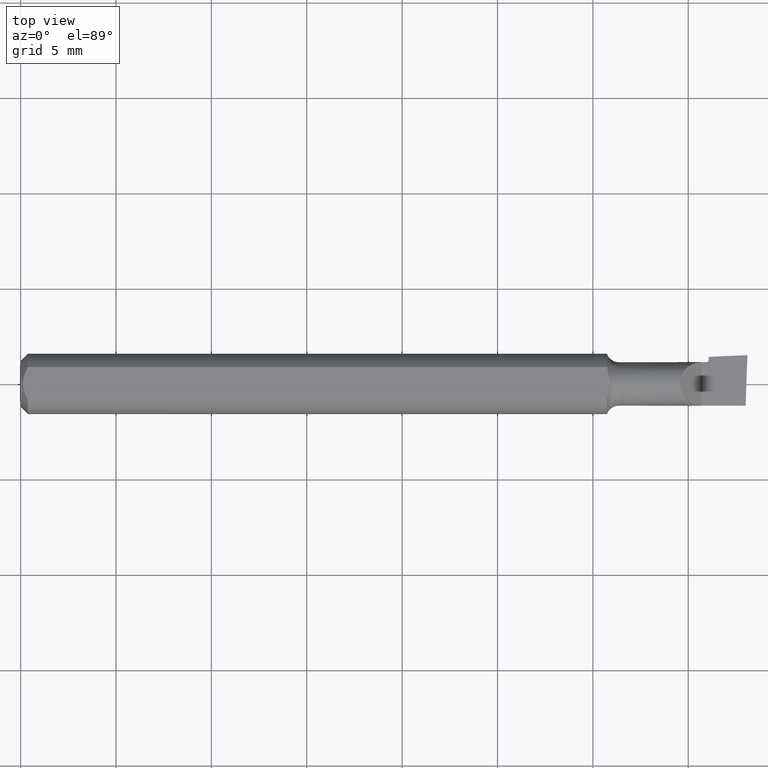
[diagram: clean part render]
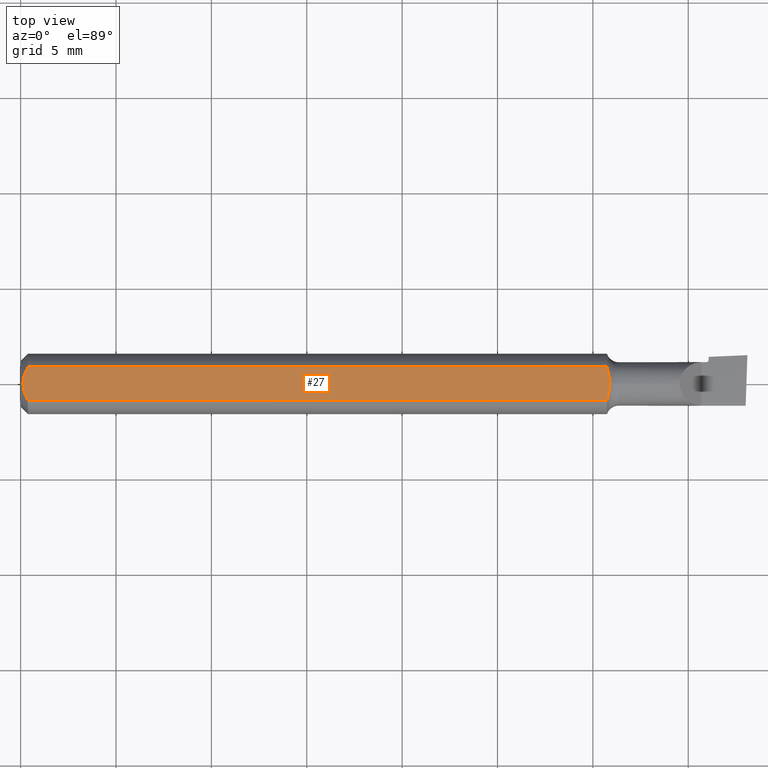
[diagram: same view with one face highlighted and labeled with its STEP entity id]
A machine part, top view. The second image highlights one B-rep face of the part: STEP entity #27.
In plain terms, the highlighted planar face has unit normal (-0, 0, -1).
Its self-contained STEP definition (entity closure, byte-faithful):
#2 = EDGE_CURVE ( 'NONE', #540, #177, #97, .T. ) ;
#4 = DIRECTION ( 'NONE',  ( -1.000000000000000000, 0.000000000000000000, 0.000000000000000000 ) ) ;
#21 = CARTESIAN_POINT ( 'NONE',  ( 1.216294704182079744, 0.005727781574962463422, 0.05235000000000000764 ) ) ;
#22 = VERTEX_POINT ( 'NONE', #380 ) ;
#27 = ADVANCED_FACE ( 'NONE', ( #394 ), #528, .F. ) ;
#43 = CARTESIAN_POINT ( 'NONE',  ( 0.01500000000000134386, -0.03386738844375219992, 0.05235000000000000764 ) ) ;
#51 = CARTESIAN_POINT ( 'NONE',  ( 0.01215148319993578432, 0.02862325741844273796, 0.05235000000000001458 ) ) ;
#53 = CARTESIAN_POINT ( 'NONE',  ( 0.01500000000000134386, -0.03386738844375219992, 0.05235000000000000764 ) ) ;
#61 = EDGE_CURVE ( 'NONE', #367, #444, #399, .T. ) ;
#65 = DIRECTION ( 'NONE',  ( 1.000000000000000000, 0.000000000000000000, 0.000000000000000000 ) ) ;
#74 = B_SPLINE_CURVE_WITH_KNOTS ( 'NONE', 3,
 ( #535, #162, #490, #289, #108, #53 ),
 .UNSPECIFIED., .F., .F.,
 ( 4, 2, 4 ),
 ( 0.003138065481210369073, 0.003587221268395912946, 0.004036377055581456819 ),
 .UNSPECIFIED. ) ;
#75 = CARTESIAN_POINT ( 'NONE',  ( 1.210199212197912599, 0.03386738844375219298, 0.05235000000000000764 ) ) ;
#84 = EDGE_CURVE ( 'NONE', #177, #444, #74, .T. ) ;
#97 = B_SPLINE_CURVE_WITH_KNOTS ( 'NONE', 3,
 ( #479, #51, #281, #476, #435, #323 ),
 .UNSPECIFIED., .F., .F.,
 ( 4, 2, 4 ),
 ( 0.002239757098154139970, 0.002688911289682254738, 0.003138065481210369073 ),
 .UNSPECIFIED. ) ;
#104 = B_SPLINE_CURVE_WITH_KNOTS ( 'NONE', 3,
 ( #121, #417, #266, #169, #176, #604 ),
 .UNSPECIFIED., .F., .F.,
 ( 4, 2, 4 ),
 ( 7.997048211592323728E-18, 0.0004371228731191618977, 0.0008742457462383155554 ),
 .UNSPECIFIED. ) ;
#108 = CARTESIAN_POINT ( 'NONE',  ( 0.01215371382284740828, -0.02862736400430402478, 0.05235000000000000764 ) ) ;
#109 = EDGE_CURVE ( 'NONE', #540, #406, #256, .T. ) ;
#113 = AXIS2_PLACEMENT_3D ( 'NONE', #157, #242, #4 ) ;
#121 = CARTESIAN_POINT ( 'NONE',  ( 1.216294704182081743, 5.980258425352743234E-45, 0.05235000000000000764 ) ) ;
#131 = ORIENTED_EDGE ( 'NONE', *, *, #84, .T. ) ;
#156 = B_SPLINE_CURVE_WITH_KNOTS ( 'NONE', 3,
 ( #75, #496, #165, #311, #21, #369 ),
 .UNSPECIFIED., .F., .F.,
 ( 4, 2, 4 ),
 ( 0.008461957719256174570, 0.008892358141365519497, 0.009322758563474862689 ),
 .UNSPECIFIED. ) ;
#157 = CARTESIAN_POINT ( 'NONE',  ( 0.000000000000000000, 0.04793338999999999933, 0.05235000000000000764 ) ) ;
#162 = CARTESIAN_POINT ( 'NONE',  ( 0.005000000000001387016, -0.005922428141025059233, 0.05235000000000002152 ) ) ;
#165 = CARTESIAN_POINT ( 'NONE',  ( 1.212665865278044652, 0.02264566276758899627, 0.05235000000000001458 ) ) ;
#169 = CARTESIAN_POINT ( 'NONE',  ( 1.212662726067923025, -0.02265753296402302913, 0.05235000000000000764 ) ) ;
#176 = CARTESIAN_POINT ( 'NONE',  ( 1.211183353785425298, -0.02823046378080374536, 0.05235000000000000070 ) ) ;
#177 = VERTEX_POINT ( 'NONE', #411 ) ;
#216 = EDGE_CURVE ( 'NONE', #22, #367, #104, .T. ) ;
#242 = DIRECTION ( 'NONE',  ( -0.000000000000000000, 0.000000000000000000, -1.000000000000000000 ) ) ;
#250 = EDGE_CURVE ( 'NONE', #406, #22, #156, .T. ) ;
#256 = LINE ( 'NONE', #294, #298 ) ;
#266 = CARTESIAN_POINT ( 'NONE',  ( 1.215248991601179496, -0.01145844255424206121, 0.05235000000000001458 ) ) ;
#281 = CARTESIAN_POINT ( 'NONE',  ( 0.009665130484206837028, 0.02321408954762991736, 0.05235000000000001458 ) ) ;
#289 = CARTESIAN_POINT ( 'NONE',  ( 0.009663423781324993397, -0.02320891702790696398, 0.05234999999999998682 ) ) ;
#294 = CARTESIAN_POINT ( 'NONE',  ( 1.500000000000000222, 0.03386738844375219298, 0.05235000000000000764 ) ) ;
#298 = VECTOR ( 'NONE', #65, 39.37007874015748143 ) ;
#311 = CARTESIAN_POINT ( 'NONE',  ( 1.215252698412093046, 0.01144066343224819926, 0.05234999999999998682 ) ) ;
#317 = ORIENTED_EDGE ( 'NONE', *, *, #216, .F. ) ;
#323 = CARTESIAN_POINT ( 'NONE',  ( 0.005000000000001387016, 6.414153026140964483E-18, 0.05235000000000000764 ) ) ;
#351 = CARTESIAN_POINT ( 'NONE',  ( 1.500000000000000222, -0.03386738844375219298, 0.05235000000000000764 ) ) ;
#367 = VERTEX_POINT ( 'NONE', #522 ) ;
#369 = CARTESIAN_POINT ( 'NONE',  ( 1.216294704182081743, 5.980258425352743234E-45, 0.05235000000000000764 ) ) ;
#380 = CARTESIAN_POINT ( 'NONE',  ( 1.216294704182081743, 5.980258425352743234E-45, 0.05235000000000000764 ) ) ;
#394 = FACE_OUTER_BOUND ( 'NONE', #617, .T. ) ;
#399 = LINE ( 'NONE', #351, #487 ) ;
#406 = VERTEX_POINT ( 'NONE', #421 ) ;
#411 = CARTESIAN_POINT ( 'NONE',  ( 0.005000000000001387016, 6.414153026140964483E-18, 0.05235000000000000764 ) ) ;
#417 = CARTESIAN_POINT ( 'NONE',  ( 1.216294704182079967, -0.005817244152261689429, 0.05235000000000001458 ) ) ;
#421 = CARTESIAN_POINT ( 'NONE',  ( 1.210199212197912599, 0.03386738844375219298, 0.05235000000000000764 ) ) ;
#432 = ORIENTED_EDGE ( 'NONE', *, *, #109, .F. ) ;
#435 = CARTESIAN_POINT ( 'NONE',  ( 0.005000000000001388750, 0.005922407101183794174, 0.05235000000000000070 ) ) ;
#444 = VERTEX_POINT ( 'NONE', #43 ) ;
#476 = CARTESIAN_POINT ( 'NONE',  ( 0.006070804952378321996, 0.01191432965610325807, 0.05235000000000000764 ) ) ;
#479 = CARTESIAN_POINT ( 'NONE',  ( 0.01500000000000134212, 0.03386738844375219992, 0.05235000000000000764 ) ) ;
#482 = CARTESIAN_POINT ( 'NONE',  ( 0.01500000000000134212, 0.03386738844375219992, 0.05235000000000000764 ) ) ;
#487 = VECTOR ( 'NONE', #587, 39.37007874015748143 ) ;
#490 = CARTESIAN_POINT ( 'NONE',  ( 0.006072086686448084983, -0.01191816614558191892, 0.05235000000000001458 ) ) ;
#496 = CARTESIAN_POINT ( 'NONE',  ( 1.211185151321282572, 0.02822016793086243661, 0.05235000000000002152 ) ) ;
#504 = ORIENTED_EDGE ( 'NONE', *, *, #61, .F. ) ;
#522 = CARTESIAN_POINT ( 'NONE',  ( 1.210199212197856422, -0.03386738844407404664, 0.05235000000000000764 ) ) ;
#528 = PLANE ( 'NONE',  #113 ) ;
#535 = CARTESIAN_POINT ( 'NONE',  ( 0.005000000000001387016, 6.414153026140964483E-18, 0.05235000000000000764 ) ) ;
#540 = VERTEX_POINT ( 'NONE', #482 ) ;
#587 = DIRECTION ( 'NONE',  ( -1.000000000000000000, -0.000000000000000000, -0.000000000000000000 ) ) ;
#596 = ORIENTED_EDGE ( 'NONE', *, *, #250, .F. ) ;
#601 = ORIENTED_EDGE ( 'NONE', *, *, #2, .T. ) ;
#604 = CARTESIAN_POINT ( 'NONE',  ( 1.210199212197856422, -0.03386738844407404664, 0.05235000000000000764 ) ) ;
#617 = EDGE_LOOP ( 'NONE', ( #596, #432, #601, #131, #504, #317 ) ) ;